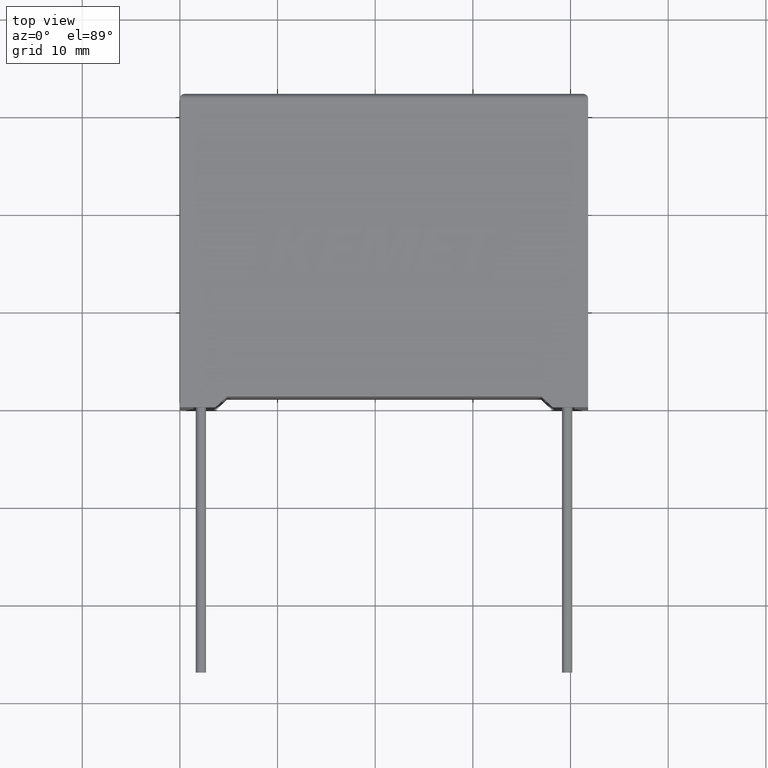
[diagram: clean part render]
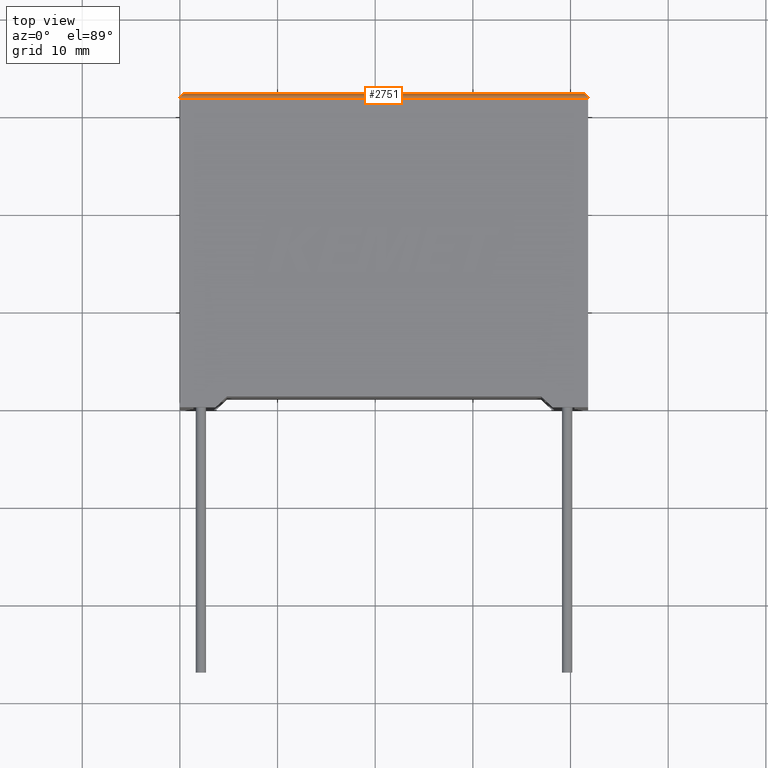
[diagram: same view with one face highlighted and labeled with its STEP entity id]
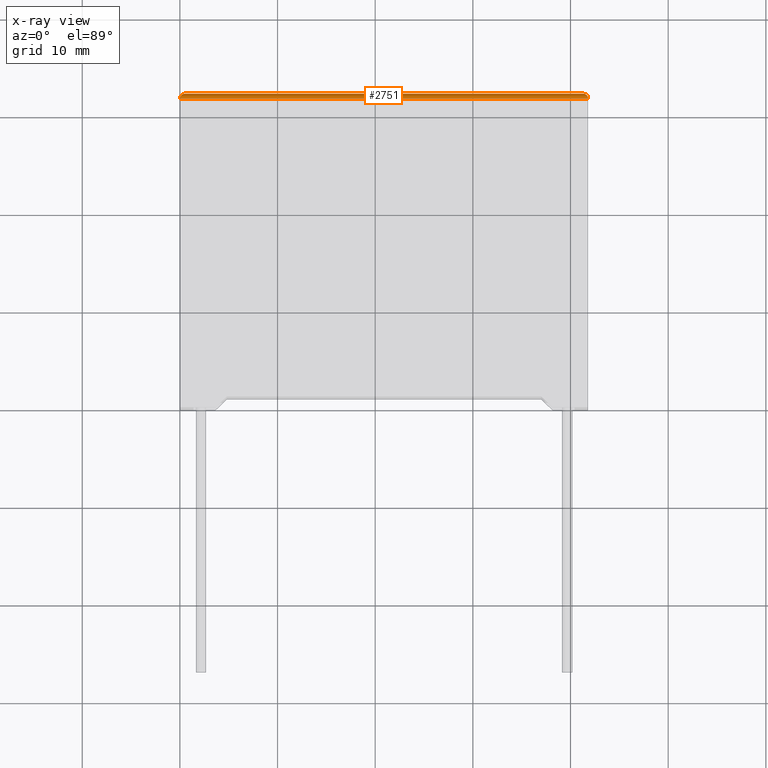
[diagram: x-ray of the same camera — body ghosted, the highlighted face saturated]
A machine part, top view. The second image highlights one B-rep face of the part: STEP entity #2751.
The next image is the same camera in x-ray: the body ghosted, the highlighted face saturated — about 0% of this face is hidden behind the body in this view.
In plain terms, the highlighted cylindrical surface (edge-blend (fillet) strip) has radius 0.5 mm, axis along (-1, 0, 0).
Its self-contained STEP definition (entity closure, byte-faithful):
#17 =( BOUNDED_CURVE ( )  B_SPLINE_CURVE ( 3, ( #1020, #1949, #2910, #2677 ),
 .UNSPECIFIED., .F., .F. ) 
 B_SPLINE_CURVE_WITH_KNOTS ( ( 4, 4 ),
 ( 3.141592653589793116, 4.712388980384689674 ),
 .UNSPECIFIED. ) 
 CURVE ( )  GEOMETRIC_REPRESENTATION_ITEM ( )  RATIONAL_B_SPLINE_CURVE ( ( 1.000000000000000000, 0.8047378541243649375, 0.8047378541243649375, 1.000000000000000000 ) ) 
 REPRESENTATION_ITEM ( '' )  );
#72 = VERTEX_POINT ( 'NONE', #2948 ) ;
#94 = FACE_OUTER_BOUND ( 'NONE', #3001, .T. ) ;
#203 = DIRECTION ( 'NONE',  ( -1.000000000000000000, 0.000000000000000000, 0.000000000000000000 ) ) ;
#248 = LINE ( 'NONE', #958, #2537 ) ;
#327 = AXIS2_PLACEMENT_3D ( 'NONE', #1800, #856, #1097 ) ;
#385 = CARTESIAN_POINT ( 'NONE',  ( 0.000000000000000000, 31.60000000000000142, 19.19999999999999929 ) ) ;
#389 = EDGE_CURVE ( 'NONE', #1699, #1506, #17, .T. ) ;
#440 = ORIENTED_EDGE ( 'NONE', *, *, #389, .T. ) ;
#446 = EDGE_CURVE ( 'NONE', #1699, #72, #2717, .T. ) ;
#517 = CARTESIAN_POINT ( 'NONE',  ( 41.79999999999999716, 31.60000000000000142, 19.19999999999999929 ) ) ;
#608 = CARTESIAN_POINT ( 'NONE',  ( 0.000000000000000000, 31.60000000000000142, 19.19999999999999929 ) ) ;
#856 = DIRECTION ( 'NONE',  ( -1.000000000000000000, 0.000000000000000000, 0.000000000000000000 ) ) ;
#884 =( BOUNDED_CURVE ( )  B_SPLINE_CURVE ( 3, ( #385, #1579, #2249, #2052 ),
 .UNSPECIFIED., .F., .T. ) 
 B_SPLINE_CURVE_WITH_KNOTS ( ( 4, 4 ),
 ( 0.000000000000000000, 1.570796326794896558 ),
 .UNSPECIFIED. ) 
 CURVE ( )  GEOMETRIC_REPRESENTATION_ITEM ( )  RATIONAL_B_SPLINE_CURVE ( ( 1.000000000000000000, 0.8047378541243649375, 0.8047378541243649375, 1.000000000000000000 ) ) 
 REPRESENTATION_ITEM ( '' )  );
#930 = EDGE_CURVE ( 'NONE', #72, #2427, #884, .T. ) ;
#950 = VECTOR ( 'NONE', #203, 1000.000000000000000 ) ;
#958 = CARTESIAN_POINT ( 'NONE',  ( 0.000000000000000000, 32.10000000000000142, 18.69999999999999929 ) ) ;
#1020 = CARTESIAN_POINT ( 'NONE',  ( 41.79999999999999716, 31.60000000000000142, 19.19999999999999929 ) ) ;
#1097 = DIRECTION ( 'NONE',  ( 0.000000000000000000, 0.000000000000000000, 1.000000000000000000 ) ) ;
#1121 = ORIENTED_EDGE ( 'NONE', *, *, #446, .F. ) ;
#1506 = VERTEX_POINT ( 'NONE', #3006 ) ;
#1579 = CARTESIAN_POINT ( 'NONE',  ( 1.084202172485504434E-16, 31.89289321881345884, 19.19999999999999929 ) ) ;
#1699 = VERTEX_POINT ( 'NONE', #517 ) ;
#1800 = CARTESIAN_POINT ( 'NONE',  ( 0.000000000000000000, 31.60000000000000142, 18.69999999999999929 ) ) ;
#1949 = CARTESIAN_POINT ( 'NONE',  ( 41.79999999999999716, 31.89289321881345884, 19.19999999999999929 ) ) ;
#2052 = CARTESIAN_POINT ( 'NONE',  ( 0.5000000000000000000, 32.10000000000000142, 18.69999999999999929 ) ) ;
#2249 = CARTESIAN_POINT ( 'NONE',  ( 0.2071067811865475727, 32.10000000000000142, 18.99289321881344961 ) ) ;
#2292 = CARTESIAN_POINT ( 'NONE',  ( 0.5000000000000000000, 32.10000000000000142, 18.69999999999999929 ) ) ;
#2340 = ORIENTED_EDGE ( 'NONE', *, *, #2825, .F. ) ;
#2348 = ORIENTED_EDGE ( 'NONE', *, *, #930, .F. ) ;
#2426 = CYLINDRICAL_SURFACE ( 'NONE', #327, 0.5000000000000004441 ) ;
#2427 = VERTEX_POINT ( 'NONE', #2292 ) ;
#2537 = VECTOR ( 'NONE', #2844, 1000.000000000000000 ) ;
#2677 = CARTESIAN_POINT ( 'NONE',  ( 41.29999999999999716, 32.10000000000000142, 18.69999999999999929 ) ) ;
#2717 = LINE ( 'NONE', #608, #950 ) ;
#2751 = ADVANCED_FACE ( 'NONE', ( #94 ), #2426, .T. ) ;
#2825 = EDGE_CURVE ( 'NONE', #2427, #1506, #248, .T. ) ;
#2844 = DIRECTION ( 'NONE',  ( 1.000000000000000000, -0.000000000000000000, -0.000000000000000000 ) ) ;
#2910 = CARTESIAN_POINT ( 'NONE',  ( 41.59289321881344392, 32.10000000000000142, 18.99289321881344961 ) ) ;
#2948 = CARTESIAN_POINT ( 'NONE',  ( 0.000000000000000000, 31.60000000000000142, 19.19999999999999929 ) ) ;
#3001 = EDGE_LOOP ( 'NONE', ( #440, #2340, #2348, #1121 ) ) ;
#3006 = CARTESIAN_POINT ( 'NONE',  ( 41.29999999999999716, 32.10000000000000142, 18.69999999999999929 ) ) ;